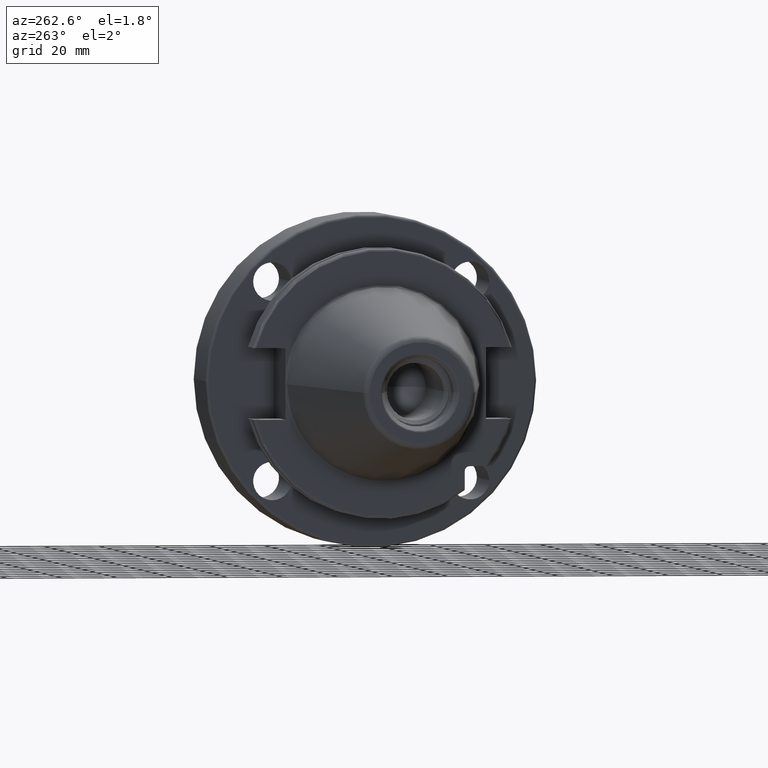
[diagram: clean part render]
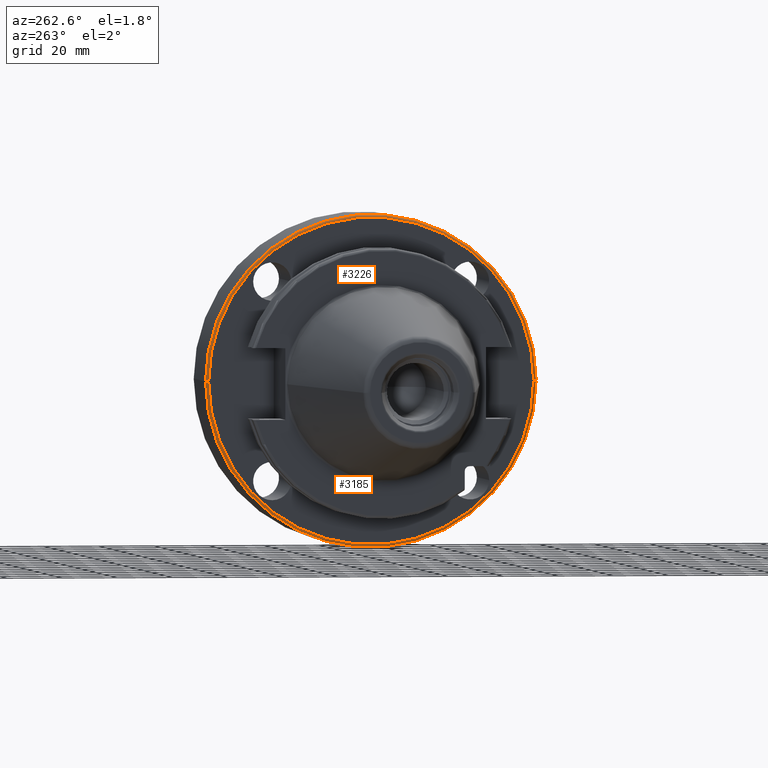
[diagram: same view with one multi-face feature highlighted, each face labeled with its STEP entity id]
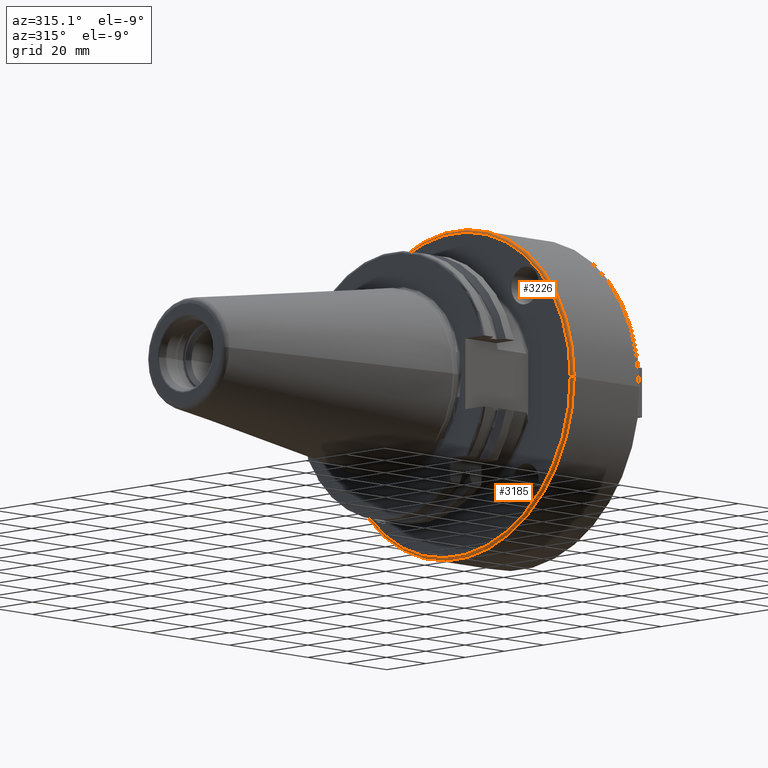
[diagram: same view with one multi-face feature highlighted, each face labeled with its STEP entity id]
A machine part, auxiliary view. The highlighted faces form ONE feature: a constant-radius fillet chain: 2 tangent blend faces with common blend radius 1 mm. The faces share edges in the B-rep.
A second angle (auxiliary view) of the same feature is appended — it is thin or edge-on in the first view.
Their STEP definitions:
[1] entity #3226 (Torus):
#206=CARTESIAN_POINT('',(3.505E1,0.E0,0.E0));
#207=DIRECTION('',(1.E0,0.E0,0.E0));
#208=DIRECTION('',(0.E0,1.E0,0.E0));
#209=AXIS2_PLACEMENT_3D('',#206,#207,#208);
#1151=CARTESIAN_POINT('',(3.605E1,-5.9E1,7.112310740354E-12));
#1152=DIRECTION('',(0.E0,-1.205476690691E-13,-1.E0));
#1153=DIRECTION('',(0.E0,-1.E0,1.205476690691E-13));
#1154=AXIS2_PLACEMENT_3D('',#1151,#1152,#1153);
#1174=CARTESIAN_POINT('',(3.605E1,0.E0,0.E0));
#1175=DIRECTION('',(1.E0,0.E0,0.E0));
#1176=DIRECTION('',(0.E0,1.E0,0.E0));
#1177=AXIS2_PLACEMENT_3D('',#1174,#1175,#1176);
#1184=CARTESIAN_POINT('',(3.605E1,5.9E1,-7.119554945589E-12));
#1185=DIRECTION('',(0.E0,1.206704007550E-13,1.E0));
#1186=DIRECTION('',(0.E0,1.E0,-1.206704007550E-13));
#1187=AXIS2_PLACEMENT_3D('',#1184,#1185,#1186);
#2044=CARTESIAN_POINT('',(3.605E1,-6.E1,-1.469576158977E-14));
#2045=CARTESIAN_POINT('',(3.605E1,6.E1,0.E0));
#2046=VERTEX_POINT('',#2044);
#2047=VERTEX_POINT('',#2045);
#2048=CARTESIAN_POINT('',(3.505E1,-5.9E1,-1.421085471520E-14));
#2049=CARTESIAN_POINT('',(3.505E1,5.9E1,0.E0));
#2050=VERTEX_POINT('',#2048);
#2051=VERTEX_POINT('',#2049);
#3215=CARTESIAN_POINT('',(3.605E1,0.E0,0.E0));
#3216=DIRECTION('',(1.E0,0.E0,0.E0));
#3217=DIRECTION('',(0.E0,9.999963916297E-1,-2.686396768824E-3));
#3218=AXIS2_PLACEMENT_3D('',#3215,#3216,#3217);
#3219=TOROIDAL_SURFACE('',#3218,5.9E1,1.E0);
#3220=ORIENTED_EDGE('',*,*,#3206,.T.);
#3221=ORIENTED_EDGE('',*,*,#3181,.T.);
#3222=ORIENTED_EDGE('',*,*,#2341,.F.);
#3223=ORIENTED_EDGE('',*,*,#3178,.F.);
#3224=EDGE_LOOP('',(#3220,#3221,#3222,#3223));
#3225=FACE_OUTER_BOUND('',#3224,.F.);
#3226=ADVANCED_FACE('',(#3225),#3219,.T.);
#210=CIRCLE('',#209,5.9E1);
#1155=CIRCLE('',#1154,1.E0);
#1178=CIRCLE('',#1177,6.E1);
#1188=CIRCLE('',#1187,1.E0);
#2341=EDGE_CURVE('',#2051,#2050,#210,.T.);
#3178=EDGE_CURVE('',#2047,#2051,#1188,.T.);
#3181=EDGE_CURVE('',#2046,#2050,#1155,.T.);
#3206=EDGE_CURVE('',#2047,#2046,#1178,.T.);
[2] entity #3185 (Torus):
#201=CARTESIAN_POINT('',(3.505E1,0.E0,0.E0));
#202=DIRECTION('',(1.E0,0.E0,0.E0));
#203=DIRECTION('',(0.E0,-1.E0,0.E0));
#204=AXIS2_PLACEMENT_3D('',#201,#202,#203);
#1151=CARTESIAN_POINT('',(3.605E1,-5.9E1,7.112310740354E-12));
#1152=DIRECTION('',(0.E0,-1.205476690691E-13,-1.E0));
#1153=DIRECTION('',(0.E0,-1.E0,1.205476690691E-13));
#1154=AXIS2_PLACEMENT_3D('',#1151,#1152,#1153);
#1156=CARTESIAN_POINT('',(3.605E1,0.E0,0.E0));
#1157=DIRECTION('',(1.E0,0.E0,0.E0));
#1158=DIRECTION('',(0.E0,-1.E0,0.E0));
#1159=AXIS2_PLACEMENT_3D('',#1156,#1157,#1158);
#1184=CARTESIAN_POINT('',(3.605E1,5.9E1,-7.119554945589E-12));
#1185=DIRECTION('',(0.E0,1.206704007550E-13,1.E0));
#1186=DIRECTION('',(0.E0,1.E0,-1.206704007550E-13));
#1187=AXIS2_PLACEMENT_3D('',#1184,#1185,#1186);
#2044=CARTESIAN_POINT('',(3.605E1,-6.E1,-1.469576158977E-14));
#2045=CARTESIAN_POINT('',(3.605E1,6.E1,0.E0));
#2046=VERTEX_POINT('',#2044);
#2047=VERTEX_POINT('',#2045);
#2048=CARTESIAN_POINT('',(3.505E1,-5.9E1,-1.421085471520E-14));
#2049=CARTESIAN_POINT('',(3.505E1,5.9E1,0.E0));
#2050=VERTEX_POINT('',#2048);
#2051=VERTEX_POINT('',#2049);
#3171=CARTESIAN_POINT('',(3.605E1,0.E0,0.E0));
#3172=DIRECTION('',(1.E0,0.E0,0.E0));
#3173=DIRECTION('',(0.E0,-9.999963916297E-1,2.686396768825E-3));
#3174=AXIS2_PLACEMENT_3D('',#3171,#3172,#3173);
#3175=TOROIDAL_SURFACE('',#3174,5.9E1,1.E0);
#3177=ORIENTED_EDGE('',*,*,#3176,.T.);
#3179=ORIENTED_EDGE('',*,*,#3178,.T.);
#3180=ORIENTED_EDGE('',*,*,#2339,.F.);
#3182=ORIENTED_EDGE('',*,*,#3181,.F.);
#3183=EDGE_LOOP('',(#3177,#3179,#3180,#3182));
#3184=FACE_OUTER_BOUND('',#3183,.F.);
#3185=ADVANCED_FACE('',(#3184),#3175,.T.);
#205=CIRCLE('',#204,5.9E1);
#1155=CIRCLE('',#1154,1.E0);
#1160=CIRCLE('',#1159,6.E1);
#1188=CIRCLE('',#1187,1.E0);
#2339=EDGE_CURVE('',#2050,#2051,#205,.T.);
#3176=EDGE_CURVE('',#2046,#2047,#1160,.T.);
#3178=EDGE_CURVE('',#2047,#2051,#1188,.T.);
#3181=EDGE_CURVE('',#2046,#2050,#1155,.T.);